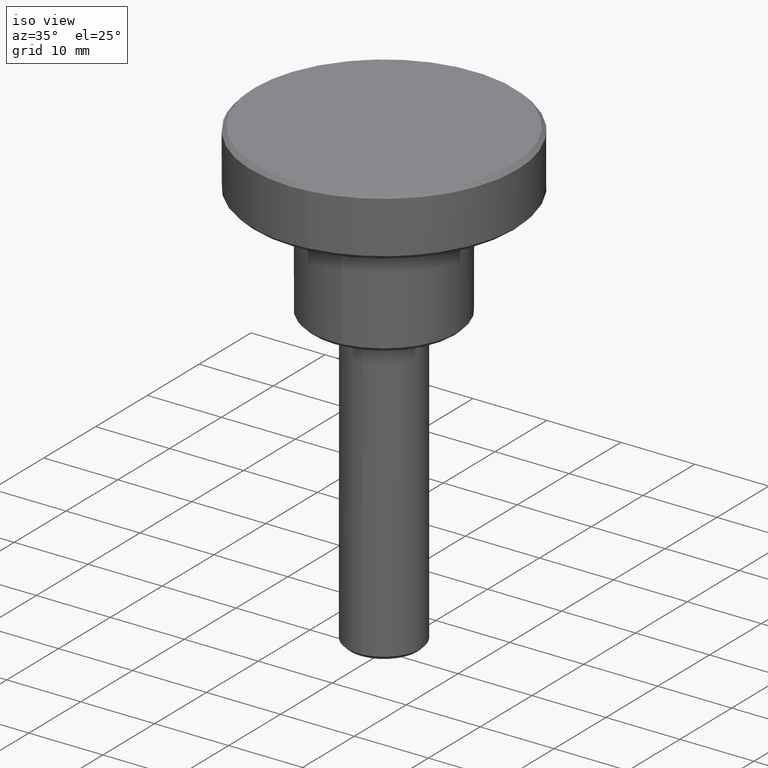
[diagram: clean part render]
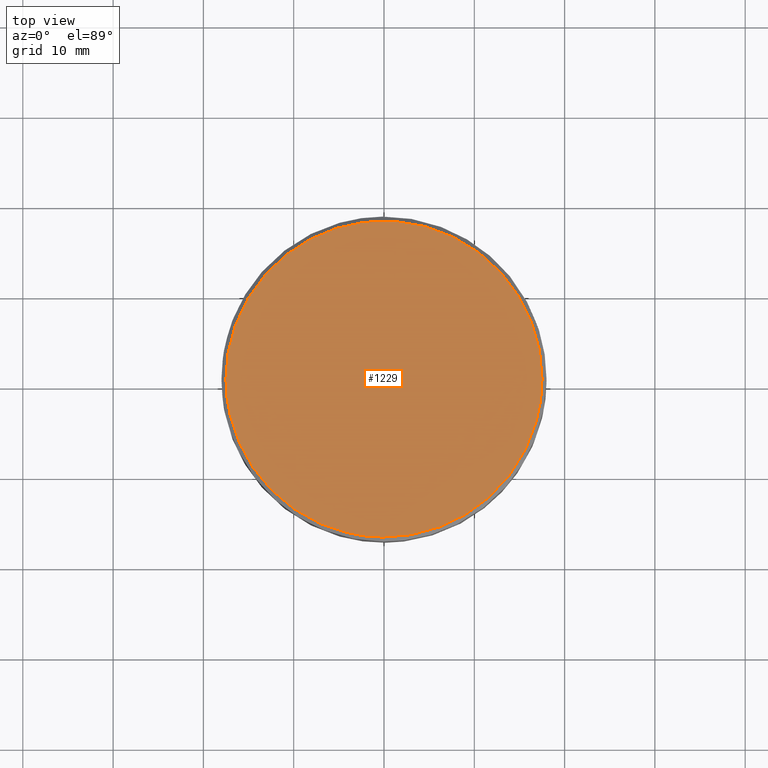
[diagram: tour spotlight — one face highlighted and labeled with its STEP entity id]
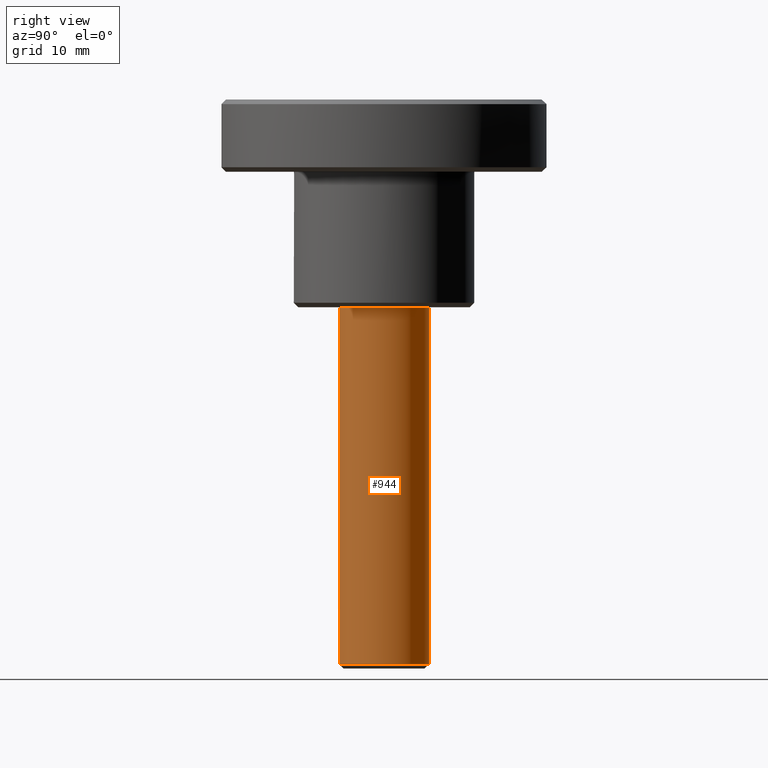
[diagram: tour spotlight — one face highlighted and labeled with its STEP entity id]
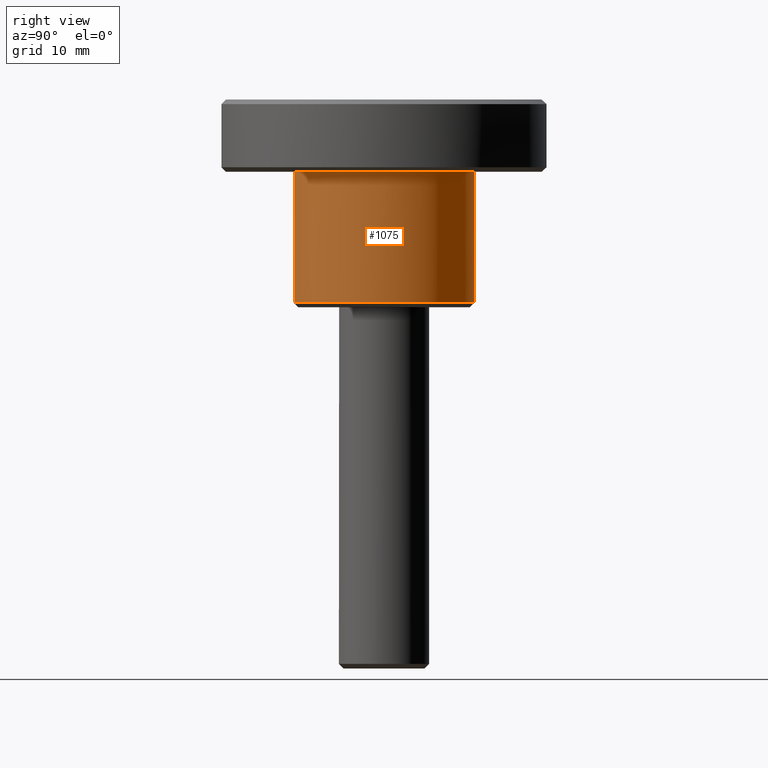
[diagram: tour spotlight — one face highlighted and labeled with its STEP entity id]
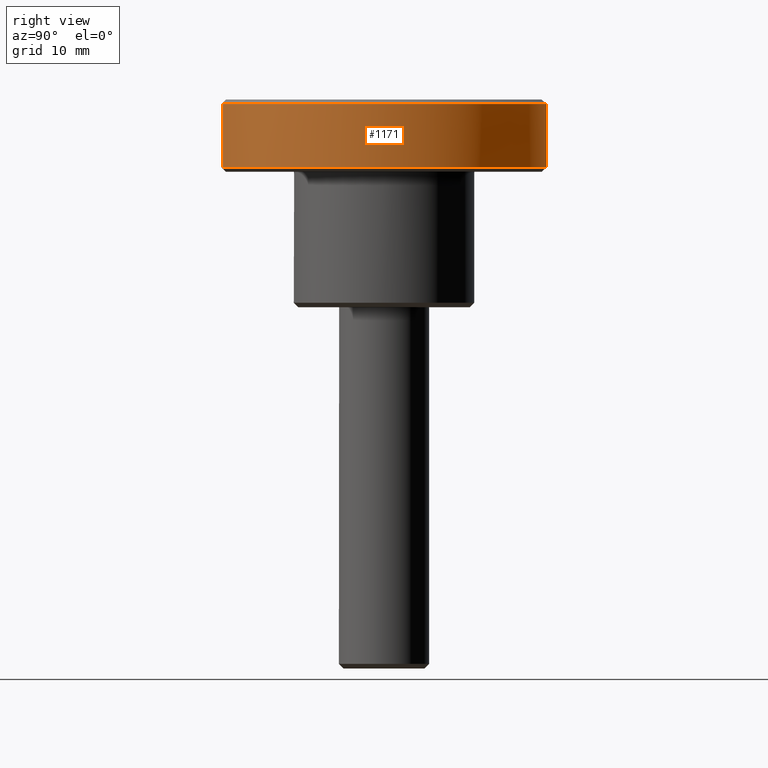
[diagram: tour spotlight — one face highlighted and labeled with its STEP entity id]
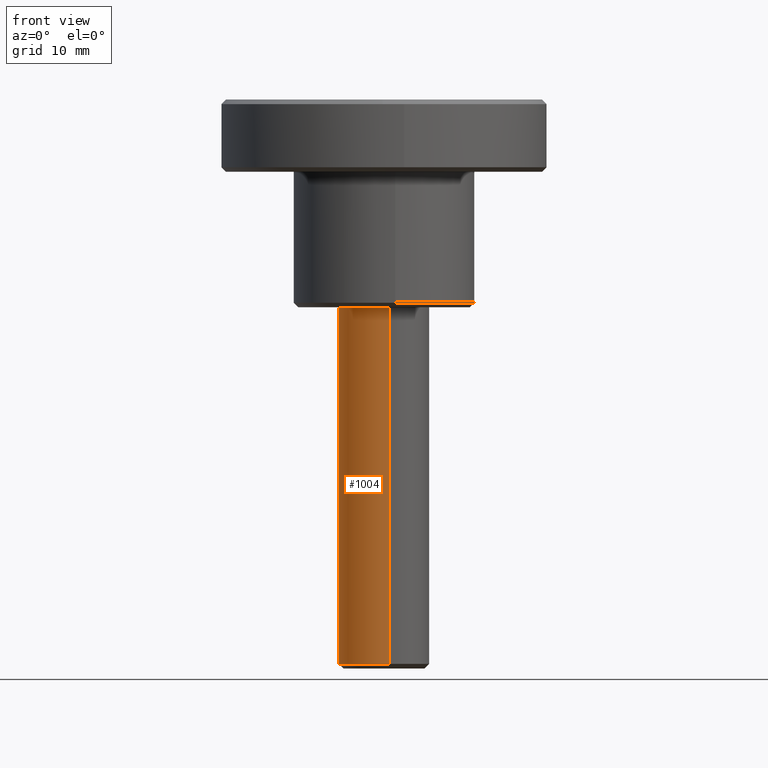
[diagram: tour spotlight — one face highlighted and labeled with its STEP entity id]
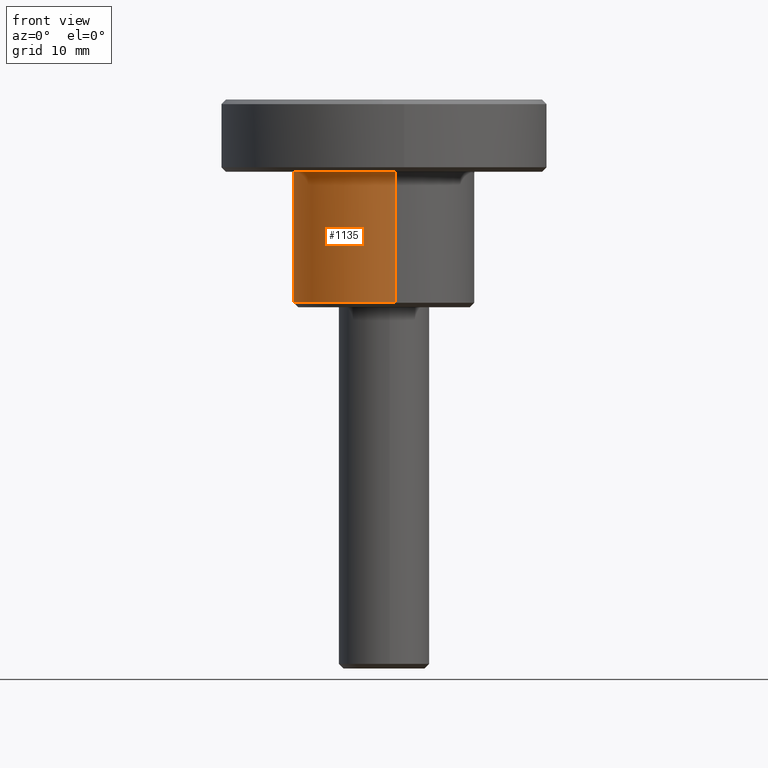
[diagram: tour spotlight — one face highlighted and labeled with its STEP entity id]
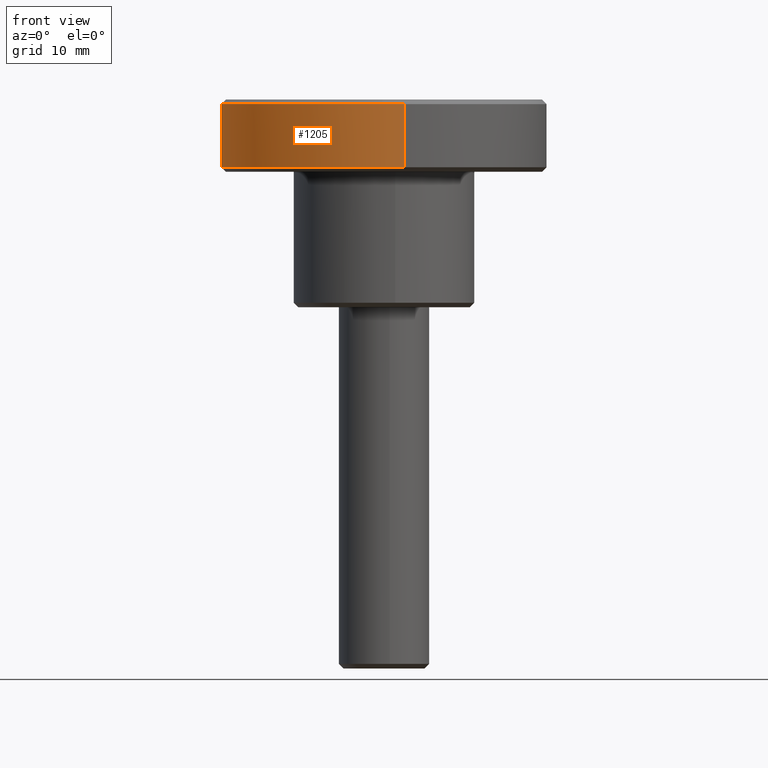
[diagram: tour spotlight — one face highlighted and labeled with its STEP entity id]
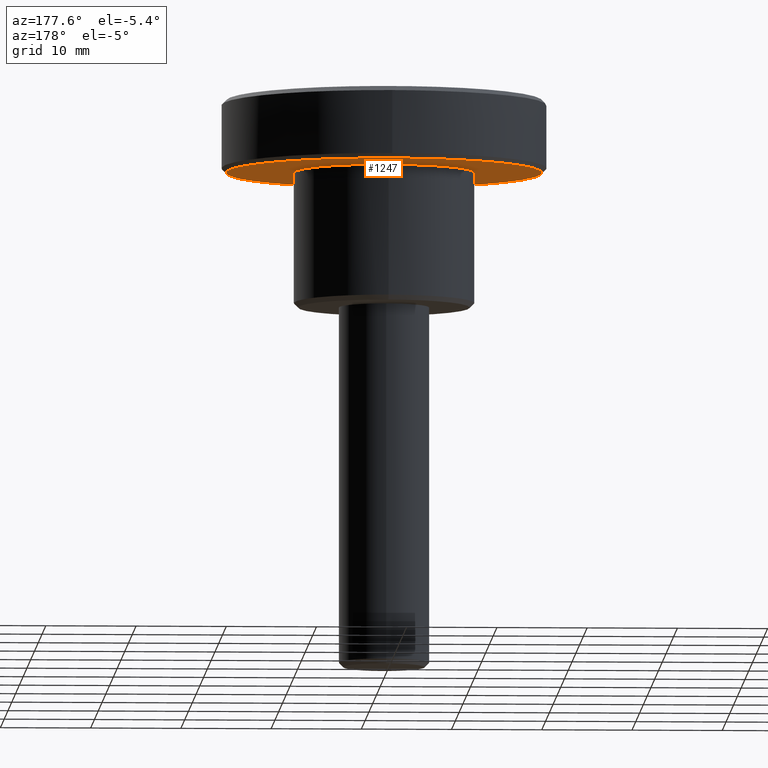
[diagram: tour spotlight — one face highlighted and labeled with its STEP entity id]
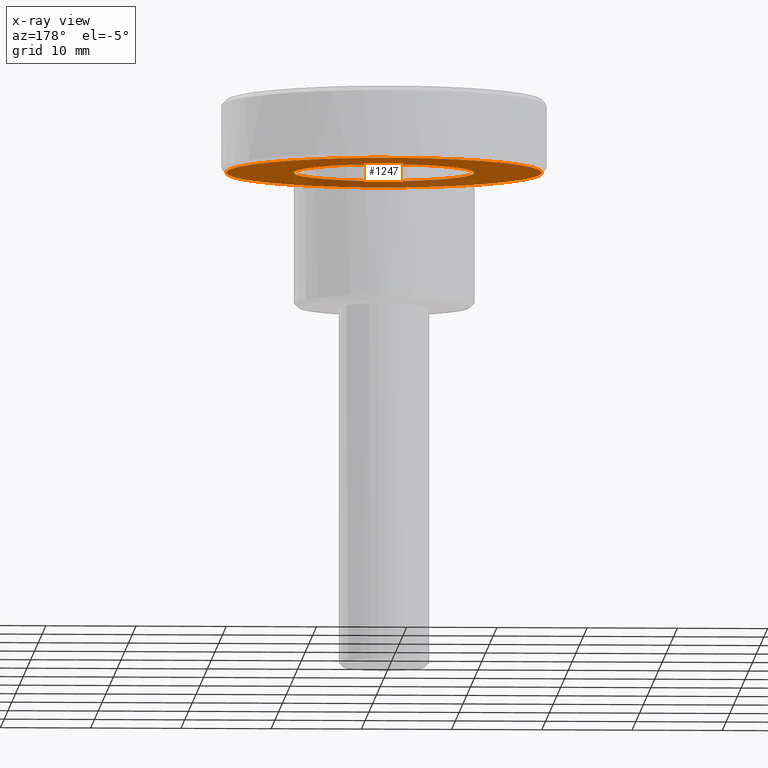
[diagram: x-ray of the same camera — body ghosted, this tour face saturated]
A machine part: a face-by-face anatomy tour. The part has 18 B-rep faces; the first image is the clean iso view, then the 8 largest visible faces are spotlighted one at a time (largest first), each with its STEP entity span.

Face 1 — top view, entity #1229. In plain terms, the highlighted face is a freeform B-spline surface patch.
Definition (entity closure, byte-faithful):
#288=CARTESIAN_POINT('',(-17.048817680625131,-3.948140789385914,22.999999999999769));
#289=VERTEX_POINT('',#288);
#295=CARTESIAN_POINT('',(-17.500000000000000,0.0,23.0));
#296=VERTEX_POINT('',#295);
#297=CARTESIAN_POINT('',(-17.500000000000000,0.0,23.0));
#298=CARTESIAN_POINT('',(-17.500000000000000,-1.999850311897530,23.0));
#299=CARTESIAN_POINT('',(-17.048817680625131,-3.948140789385913,22.999999999999780));
#307=(BOUNDED_CURVE()B_SPLINE_CURVE(2,(#297,#298,#299),.UNSPECIFIED.,.F.,.U.)B_SPLINE_CURVE_WITH_KNOTS((3,3),(0.500000000000000,0.538577028215430),.UNSPECIFIED.)CURVE()GEOMETRIC_REPRESENTATION_ITEM()RATIONAL_B_SPLINE_CURVE((1.0,0.954804200134902,0.923556557442722))REPRESENTATION_ITEM(''));
#308=EDGE_CURVE('',#296,#289,#307,.T.);
#310=CARTESIAN_POINT('',(17.500000000000000,0.0,23.0));
#311=VERTEX_POINT('',#310);
#312=CARTESIAN_POINT('',(17.500000000000000,0.0,23.0));
#313=CARTESIAN_POINT('',(17.499999999999996,17.499999999999996,22.999999999999993));
#314=CARTESIAN_POINT('',(0.0,17.500000000000000,23.0));
#315=CARTESIAN_POINT('',(-17.499999999999996,17.499999999999996,22.999999999999993));
#316=CARTESIAN_POINT('',(-17.500000000000000,0.0,23.0));
#324=(BOUNDED_CURVE()B_SPLINE_CURVE(2,(#312,#313,#314,#315,#316),.UNSPECIFIED.,.F.,.U.)B_SPLINE_CURVE_WITH_KNOTS((3,2,3),(0.0,0.250000000000000,0.500000000000000),.UNSPECIFIED.)CURVE()GEOMETRIC_REPRESENTATION_ITEM()RATIONAL_B_SPLINE_CURVE((1.0,0.707106781186548,1.0,0.707106781186548,1.0))REPRESENTATION_ITEM(''));
#325=EDGE_CURVE('',#311,#296,#324,.T.);
#327=CARTESIAN_POINT('',(-0.152714371282346,-17.499333653630739,22.999999999991751));
#328=VERTEX_POINT('',#327);
#329=CARTESIAN_POINT('',(-0.152714371282346,-17.499333653630735,22.999999999991754));
#330=CARTESIAN_POINT('',(-0.076358639423012,-17.499999999999993,23.000000000000004));
#331=CARTESIAN_POINT('',(0.0,-17.500000000000000,23.0));
#332=CARTESIAN_POINT('',(17.499999999999996,-17.499999999999996,22.999999999999993));
#333=CARTESIAN_POINT('',(17.500000000000000,0.0,23.0));
#341=(BOUNDED_CURVE()B_SPLINE_CURVE(2,(#329,#330,#331,#332,#333),.UNSPECIFIED.,.F.,.U.)B_SPLINE_CURVE_WITH_KNOTS((3,2,3),(0.748460105663790,0.750000000000000,1.0),.UNSPECIFIED.)CURVE()GEOMETRIC_REPRESENTATION_ITEM()RATIONAL_B_SPLINE_CURVE((0.996414028097576,0.998195901564940,1.0,0.707106781186548,1.0))REPRESENTATION_ITEM(''));
#342=EDGE_CURVE('',#328,#311,#341,.T.);
#444=CARTESIAN_POINT('',(-17.048817680625131,-3.948140789385914,22.999999999999776));
#445=CARTESIAN_POINT('',(-13.938512323490519,-17.379026817407762,23.0));
#446=CARTESIAN_POINT('',(-0.152714371282346,-17.499333653630735,22.999999999991754));
#454=(BOUNDED_CURVE()B_SPLINE_CURVE(2,(#444,#445,#446),.UNSPECIFIED.,.F.,.U.)B_SPLINE_CURVE_WITH_KNOTS((3,3),(0.538577028215430,0.748460105663791),.UNSPECIFIED.)CURVE()GEOMETRIC_REPRESENTATION_ITEM()RATIONAL_B_SPLINE_CURVE((0.923556557442722,0.753549905436844,0.996414028097577))REPRESENTATION_ITEM(''));
#455=EDGE_CURVE('',#289,#328,#454,.T.);
#1218=CARTESIAN_POINT('',(-19.248249932163208,-19.247551095767289,23.0));
#1219=CARTESIAN_POINT('',(19.248250870936360,-19.247551095767289,23.0));
#1220=CARTESIAN_POINT('',(-19.248249932163208,19.248217624707490,23.0));
#1221=CARTESIAN_POINT('',(19.248250870936360,19.248217624707490,23.0));
#1222=B_SPLINE_SURFACE_WITH_KNOTS('',1,1,((#1218,#1220),(#1219,#1221)),.UNSPECIFIED.,.F.,.F.,.U.,(2,2),(2,2),(0.0,38.496500803099579),(0.0,38.495768720474793),.UNSPECIFIED.);
#1223=ORIENTED_EDGE('',*,*,#325,.T.);
#1224=ORIENTED_EDGE('',*,*,#308,.T.);
#1225=ORIENTED_EDGE('',*,*,#455,.T.);
#1226=ORIENTED_EDGE('',*,*,#342,.T.);
#1227=EDGE_LOOP('',(#1223,#1224,#1225,#1226));
#1228=FACE_OUTER_BOUND('',#1227,.T.);
#1229=ADVANCED_FACE('',(#1228),#1222,.T.);

Face 2 — right view, entity #944. In plain terms, the highlighted face is a freeform B-spline surface patch.
Definition (entity closure, byte-faithful):
#68=CARTESIAN_POINT('',(0.620640010463084,-4.961331069119694,-39.500000000000000));
#69=VERTEX_POINT('',#68);
#126=CARTESIAN_POINT('',(-0.043632677529756,4.999809615320469,-39.500000000000028));
#127=VERTEX_POINT('',#126);
#133=CARTESIAN_POINT('',(5.0,0.0,-39.500000000000000));
#134=VERTEX_POINT('',#133);
#135=CARTESIAN_POINT('',(5.0,0.0,-39.500000000000000));
#136=CARTESIAN_POINT('',(5.000000000000001,5.000000000000001,-39.500000000000000));
#137=CARTESIAN_POINT('',(0.0,5.0,-39.500000000000000));
#138=CARTESIAN_POINT('',(-0.021816754179296,5.000000000000001,-39.500000000000000));
#139=CARTESIAN_POINT('',(-0.043632677529756,4.999809615320469,-39.500000000000028));
#147=(BOUNDED_CURVE()B_SPLINE_CURVE(2,(#135,#136,#137,#138,#139),.UNSPECIFIED.,.F.,.U.)B_SPLINE_CURVE_WITH_KNOTS((3,2,3),(0.500000000000000,0.750000000000000,0.751539894340327),.UNSPECIFIED.)CURVE()GEOMETRIC_REPRESENTATION_ITEM()RATIONAL_B_SPLINE_CURVE((1.0,0.707106781186548,1.0,0.998195901560116,0.996414028088048))REPRESENTATION_ITEM(''));
#148=EDGE_CURVE('',#134,#127,#147,.T.);
#150=CARTESIAN_POINT('',(0.620640010463084,-4.961331069119694,-39.500000000000007));
#151=CARTESIAN_POINT('',(5.000000000000001,-4.413493000636504,-39.500000000000000));
#152=CARTESIAN_POINT('',(5.0,0.0,-39.500000000000000));
#160=(BOUNDED_CURVE()B_SPLINE_CURVE(2,(#150,#151,#152),.UNSPECIFIED.,.F.,.U.)B_SPLINE_CURVE_WITH_KNOTS((3,3),(0.271473928975048,0.500000000000000),.UNSPECIFIED.)CURVE()GEOMETRIC_REPRESENTATION_ITEM()RATIONAL_B_SPLINE_CURVE((0.954005430266283,0.732265053898841,1.0))REPRESENTATION_ITEM(''));
#161=EDGE_CURVE('',#69,#134,#160,.T.);
#878=CARTESIAN_POINT('',(0.620640010399146,-4.961331069127693,-40.487500000000018));
#879=CARTESIAN_POINT('',(5.038664152512223,-4.408656290666105,-40.487500000000011));
#880=CARTESIAN_POINT('',(4.999809615320855,0.043632677491869,-40.487500000000011));
#881=CARTESIAN_POINT('',(4.956176937828985,5.043442292812725,-40.487500000000011));
#882=CARTESIAN_POINT('',(-0.043632677491869,4.999809615320855,-40.487500000000011));
#883=CARTESIAN_POINT('',(0.620640010399146,-4.961331069127693,1.012187500000003));
#884=CARTESIAN_POINT('',(5.038664152512223,-4.408656290666105,1.012187500000003));
#885=CARTESIAN_POINT('',(4.999809615320855,0.043632677491869,1.012187500000003));
#886=CARTESIAN_POINT('',(4.956176937828985,5.043442292812725,1.012187500000003));
#887=CARTESIAN_POINT('',(-0.043632677491869,4.999809615320855,1.012187500000003));
#895=(BOUNDED_SURFACE()B_SPLINE_SURFACE(2,1,((#878,#883),(#879,#884),(#880,#885),(#881,#886),(#882,#887)),.UNSPECIFIED.,.F.,.F.,.U.)B_SPLINE_SURFACE_WITH_KNOTS((3,2,3),(2,2),(0.0,7.621529547664946,15.905800795126851),(0.0,41.499687500000022),.UNSPECIFIED.)GEOMETRIC_REPRESENTATION_ITEM()RATIONAL_B_SPLINE_SURFACE(((0.956886118190660,0.956886118190660),(0.730538238691624,0.730538238691624),(1.0,1.0),(0.707106781186548,0.707106781186548),(1.0,1.0)))REPRESENTATION_ITEM('')SURFACE());
#896=ORIENTED_EDGE('',*,*,#161,.T.);
#897=ORIENTED_EDGE('',*,*,#148,.T.);
#898=CARTESIAN_POINT('',(-0.043632677557229,4.999809615320285,9.436896E-016));
#899=VERTEX_POINT('',#898);
#900=CARTESIAN_POINT('',(-0.043632677529756,4.999809615320469,-39.500000000000028));
#901=CARTESIAN_POINT('',(-0.043632677557229,4.999809615320285,9.436896E-016));
#902=QUASI_UNIFORM_CURVE('',1,(#900,#901),.UNSPECIFIED.,.F.,.U.);
#903=EDGE_CURVE('',#127,#899,#902,.T.);
#904=ORIENTED_EDGE('',*,*,#903,.T.);
#905=CARTESIAN_POINT('',(5.0,0.0,0.0));
#906=VERTEX_POINT('',#905);
#907=CARTESIAN_POINT('',(-0.043632677557229,4.999809615320285,9.436896E-016));
#908=CARTESIAN_POINT('',(-0.021816754168871,5.0,0.0));
#909=CARTESIAN_POINT('',(0.0,5.0,0.0));
#910=CARTESIAN_POINT('',(5.000000000000001,5.000000000000001,0.0));
#911=CARTESIAN_POINT('',(5.0,0.0,0.0));
#919=(BOUNDED_CURVE()B_SPLINE_CURVE(2,(#907,#908,#909,#910,#911),.UNSPECIFIED.,.F.,.U.)B_SPLINE_CURVE_WITH_KNOTS((3,2,3),(0.248460105660408,0.250000000000000,0.500000000000000),.UNSPECIFIED.)CURVE()GEOMETRIC_REPRESENTATION_ITEM()RATIONAL_B_SPLINE_CURVE((0.996414028089748,0.998195901560977,1.0,0.707106781186548,1.0))REPRESENTATION_ITEM(''));
#920=EDGE_CURVE('',#899,#906,#919,.T.);
#921=ORIENTED_EDGE('',*,*,#920,.T.);
#922=CARTESIAN_POINT('',(0.620640010418619,-4.961331069125258,9.281966E-016));
#923=VERTEX_POINT('',#922);
#924=CARTESIAN_POINT('',(5.0,0.0,0.0));
#925=CARTESIAN_POINT('',(5.000000000000002,-4.413493000716219,0.0));
#926=CARTESIAN_POINT('',(0.620640010418619,-4.961331069125258,9.281966E-016));
#934=(BOUNDED_CURVE()B_SPLINE_CURVE(2,(#924,#925,#926),.UNSPECIFIED.,.F.,.U.)B_SPLINE_CURVE_WITH_KNOTS((3,3),(0.500000000000000,0.728526071027975),.UNSPECIFIED.)CURVE()GEOMETRIC_REPRESENTATION_ITEM()RATIONAL_B_SPLINE_CURVE((1.0,0.732265053895299,0.954005430272149))REPRESENTATION_ITEM(''));
#935=EDGE_CURVE('',#906,#923,#934,.T.);
#936=ORIENTED_EDGE('',*,*,#935,.T.);
#937=CARTESIAN_POINT('',(0.620640010463084,-4.961331069119694,-39.500000000000000));
#938=CARTESIAN_POINT('',(0.620640010418619,-4.961331069125258,9.281966E-016));
#939=QUASI_UNIFORM_CURVE('',1,(#937,#938),.UNSPECIFIED.,.F.,.U.);
#940=EDGE_CURVE('',#69,#923,#939,.T.);
#941=ORIENTED_EDGE('',*,*,#940,.F.);
#942=EDGE_LOOP('',(#896,#897,#904,#921,#936,#941));
#943=FACE_OUTER_BOUND('',#942,.T.);
#944=ADVANCED_FACE('',(#943),#895,.T.);

Face 3 — right view, entity #1075. In plain terms, the highlighted face is a freeform B-spline surface patch.
Definition (entity closure, byte-faithful):
#701=CARTESIAN_POINT('',(1.241261573678535,-9.922664445871554,0.499999999999924));
#702=VERTEX_POINT('',#701);
#759=CARTESIAN_POINT('',(-0.087264279312552,9.999619240028604,0.499999999999829));
#760=VERTEX_POINT('',#759);
#766=CARTESIAN_POINT('',(10.0,0.0,0.499999999999945));
#767=VERTEX_POINT('',#766);
#768=CARTESIAN_POINT('',(10.0,0.0,0.499999999999945));
#769=CARTESIAN_POINT('',(10.000000000000002,10.000000000000002,0.499999999999945));
#770=CARTESIAN_POINT('',(0.0,10.0,0.499999999999945));
#771=CARTESIAN_POINT('',(-0.043632970340702,10.0,0.499999999999945));
#772=CARTESIAN_POINT('',(-0.087264279312552,9.999619240028604,0.499999999999829));
#780=(BOUNDED_CURVE()B_SPLINE_CURVE(2,(#768,#769,#770,#771,#772),.UNSPECIFIED.,.F.,.U.)B_SPLINE_CURVE_WITH_KNOTS((3,2,3),(0.500000000000000,0.750000000000000,0.751539875387094),.UNSPECIFIED.)CURVE()GEOMETRIC_REPRESENTATION_ITEM()RATIONAL_B_SPLINE_CURVE((1.0,0.707106781186548,1.0,0.998195923765210,0.996414071951143))REPRESENTATION_ITEM(''));
#781=EDGE_CURVE('',#767,#760,#780,.T.);
#783=CARTESIAN_POINT('',(1.241261573678535,-9.922664445871554,0.499999999999924));
#784=CARTESIAN_POINT('',(10.000000000000002,-8.827002539573293,0.499999999999945));
#785=CARTESIAN_POINT('',(10.0,0.0,0.499999999999945));
#793=(BOUNDED_CURVE()B_SPLINE_CURVE(2,(#783,#784,#785),.UNSPECIFIED.,.F.,.U.)B_SPLINE_CURVE_WITH_KNOTS((3,3),(0.271473615442755,0.500000000000000),.UNSPECIFIED.)CURVE()GEOMETRIC_REPRESENTATION_ITEM()RATIONAL_B_SPLINE_CURVE((0.954006038712170,0.732264686572910,1.0))REPRESENTATION_ITEM(''));
#794=EDGE_CURVE('',#702,#767,#793,.T.);
#1005=CARTESIAN_POINT('',(1.101168965067724,-9.940189395734080,0.137499999999943));
#1006=CARTESIAN_POINT('',(1.171051977331919,-9.931447347913837,0.137499999999943));
#1007=CARTESIAN_POINT('',(10.077328305024446,-8.817312581332210,0.137499999999943));
#1008=CARTESIAN_POINT('',(9.999619230641709,0.087265354983739,0.137499999999943));
#1009=CARTESIAN_POINT('',(9.912353875657971,10.086884585625448,0.137499999999943));
#1010=CARTESIAN_POINT('',(-0.154954740714169,9.999028514321607,0.137499999999943));
#1011=CARTESIAN_POINT('',(-0.222265600212335,9.998441101349876,0.137499999999943));
#1012=CARTESIAN_POINT('',(1.101168965067724,-9.940189395734080,15.371562500000000));
#1013=CARTESIAN_POINT('',(1.171051977331919,-9.931447347913837,15.371562500000001));
#1014=CARTESIAN_POINT('',(10.077328305024446,-8.817312581332210,15.371562500000008));
#1015=CARTESIAN_POINT('',(9.999619230641709,0.087265354983739,15.371562500000000));
#1016=CARTESIAN_POINT('',(9.912353875657971,10.086884585625448,15.371562500000001));
#1017=CARTESIAN_POINT('',(-0.154954740714169,9.999028514321607,15.371562500000008));
#1018=CARTESIAN_POINT('',(-0.222265600212335,9.998441101349876,15.371562500000000));
#1026=(BOUNDED_SURFACE()B_SPLINE_SURFACE(2,1,((#1005,#1012),(#1006,#1013),(#1007,#1014),(#1008,#1015),(#1009,#1016),(#1010,#1017),(#1011,#1018)),.UNSPECIFIED.,.F.,.F.,.U.)B_SPLINE_SURFACE_WITH_KNOTS((3,1,2,1,3),(2,2),(0.0,0.159078950191660,15.402138045521550,31.970680540445350,32.129738658369469),(0.0,15.234062500000061),.UNSPECIFIED.)GEOMETRIC_REPRESENTATION_ITEM()RATIONAL_B_SPLINE_SURFACE(((0.961610521976491,0.961610521976491),(0.959248320083576,0.959248320083576),(0.730538238691624,0.730538238691624),(1.0,1.0),(0.707106781186548,0.707106781186548),(1.002811776844673,1.002811776844673),(1.005623553689346,1.005623553689346)))REPRESENTATION_ITEM('')SURFACE());
#1027=ORIENTED_EDGE('',*,*,#794,.T.);
#1028=ORIENTED_EDGE('',*,*,#781,.T.);
#1029=CARTESIAN_POINT('',(-0.087265362899344,9.999619230572632,15.0));
#1030=VERTEX_POINT('',#1029);
#1031=CARTESIAN_POINT('',(-0.087264279312552,9.999619240028604,0.499999999999829));
#1032=CARTESIAN_POINT('',(-0.087265362899344,9.999619230572632,15.0));
#1033=QUASI_UNIFORM_CURVE('',1,(#1031,#1032),.UNSPECIFIED.,.F.,.U.);
#1034=EDGE_CURVE('',#760,#1030,#1033,.T.);
#1035=ORIENTED_EDGE('',*,*,#1034,.T.);
#1036=CARTESIAN_POINT('',(10.0,0.0,15.0));
#1037=VERTEX_POINT('',#1036);
#1038=CARTESIAN_POINT('',(-0.087265362899344,9.999619230572632,15.000000000000002));
#1039=CARTESIAN_POINT('',(-0.043633516123073,10.0,14.999999999999995));
#1040=CARTESIAN_POINT('',(0.0,10.0,15.0));
#1041=CARTESIAN_POINT('',(10.000000000000002,10.000000000000002,14.999999999999995));
#1042=CARTESIAN_POINT('',(10.0,0.0,15.0));
#1050=(BOUNDED_CURVE()B_SPLINE_CURVE(2,(#1038,#1039,#1040,#1041,#1042),.UNSPECIFIED.,.F.,.U.)B_SPLINE_CURVE_WITH_KNOTS((3,2,3),(0.248460105386147,0.250000000000000,0.500000000000000),.UNSPECIFIED.)CURVE()GEOMETRIC_REPRESENTATION_ITEM()RATIONAL_B_SPLINE_CURVE((0.996414027455032,0.998195901239660,1.0,0.707106781186548,1.0))REPRESENTATION_ITEM(''));
#1051=EDGE_CURVE('',#1030,#1037,#1050,.T.);
#1052=ORIENTED_EDGE('',*,*,#1051,.T.);
#1053=CARTESIAN_POINT('',(1.241271613211208,-9.922663189999156,15.0));
#1054=VERTEX_POINT('',#1053);
#1055=CARTESIAN_POINT('',(10.0,0.0,15.0));
#1056=CARTESIAN_POINT('',(10.0,-8.826993539005677,15.000000000000007));
#1057=CARTESIAN_POINT('',(1.241271613211209,-9.922663189999156,14.999999999999996));
#1065=(BOUNDED_CURVE()B_SPLINE_CURVE(2,(#1055,#1056,#1057),.UNSPECIFIED.,.F.,.U.)B_SPLINE_CURVE_WITH_KNOTS((3,3),(0.500000000000000,0.728526213924961),.UNSPECIFIED.)CURVE()GEOMETRIC_REPRESENTATION_ITEM()RATIONAL_B_SPLINE_CURVE((1.0,0.732264886481066,0.954005707580145))REPRESENTATION_ITEM(''));
#1066=EDGE_CURVE('',#1037,#1054,#1065,.T.);
#1067=ORIENTED_EDGE('',*,*,#1066,.T.);
#1068=CARTESIAN_POINT('',(1.241261573678535,-9.922664445871554,0.499999999999924));
#1069=CARTESIAN_POINT('',(1.241271613211208,-9.922663189999156,15.0));
#1070=QUASI_UNIFORM_CURVE('',1,(#1068,#1069),.UNSPECIFIED.,.F.,.U.);
#1071=EDGE_CURVE('',#702,#1054,#1070,.T.);
#1072=ORIENTED_EDGE('',*,*,#1071,.F.);
#1073=EDGE_LOOP('',(#1027,#1028,#1035,#1052,#1067,#1072));
#1074=FACE_OUTER_BOUND('',#1073,.T.);
#1075=ADVANCED_FACE('',(#1074),#1026,.T.);

Face 4 — right view, entity #1171. In plain terms, the highlighted face is a freeform B-spline surface patch.
Definition (entity closure, byte-faithful):
#351=CARTESIAN_POINT('',(2.234285799115181,-17.860794130372089,22.499999999999989));
#352=VERTEX_POINT('',#351);
#368=CARTESIAN_POINT('',(18.0,0.0,22.500000000000000));
#369=VERTEX_POINT('',#368);
#370=CARTESIAN_POINT('',(18.0,0.0,22.500000000000000));
#371=CARTESIAN_POINT('',(18.000000000000004,-15.888591153580794,22.500000000000000));
#372=CARTESIAN_POINT('',(2.234285799115181,-17.860794130372092,22.499999999999982));
#380=(BOUNDED_CURVE()B_SPLINE_CURVE(2,(#370,#371,#372),.UNSPECIFIED.,.F.,.U.)B_SPLINE_CURVE_WITH_KNOTS((3,3),(0.500000000000000,0.728526243239963),.UNSPECIFIED.)CURVE()GEOMETRIC_REPRESENTATION_ITEM()RATIONAL_B_SPLINE_CURVE((1.0,0.732264852136405,0.954005764469317))REPRESENTATION_ITEM(''));
#381=EDGE_CURVE('',#369,#352,#380,.T.);
#383=CARTESIAN_POINT('',(-0.157059840432598,17.999314770462970,22.499999999999879));
#384=VERTEX_POINT('',#383);
#385=CARTESIAN_POINT('',(-0.157059840432598,17.999314770462966,22.499999999999879));
#386=CARTESIAN_POINT('',(-0.078531414995351,18.0,22.500000000000000));
#387=CARTESIAN_POINT('',(0.0,18.0,22.500000000000000));
#388=CARTESIAN_POINT('',(18.000000000000007,18.000000000000007,22.500000000000004));
#389=CARTESIAN_POINT('',(18.0,0.0,22.500000000000000));
#397=(BOUNDED_CURVE()B_SPLINE_CURVE(2,(#385,#386,#387,#388,#389),.UNSPECIFIED.,.F.,.U.)B_SPLINE_CURVE_WITH_KNOTS((3,2,3),(0.248460279843010,0.250000000000000,0.500000000000000),.UNSPECIFIED.)CURVE()GEOMETRIC_REPRESENTATION_ITEM()RATIONAL_B_SPLINE_CURVE((0.996414431197377,0.998196105628589,1.0,0.707106781186547,1.0))REPRESENTATION_ITEM(''));
#398=EDGE_CURVE('',#384,#369,#397,.T.);
#562=CARTESIAN_POINT('',(-0.157060157866993,17.999314767693381,15.500000000000000));
#563=VERTEX_POINT('',#562);
#577=CARTESIAN_POINT('',(18.0,0.0,15.500000000000000));
#578=VERTEX_POINT('',#577);
#579=CARTESIAN_POINT('',(18.0,0.0,15.500000000000000));
#580=CARTESIAN_POINT('',(18.000000000000007,18.000000000000007,15.500000000000005));
#581=CARTESIAN_POINT('',(0.0,18.0,15.500000000000000));
#582=CARTESIAN_POINT('',(-0.078531573721610,18.000000000000004,15.500000000000004));
#583=CARTESIAN_POINT('',(-0.157060157866993,17.999314767693381,15.500000000000004));
#591=(BOUNDED_CURVE()B_SPLINE_CURVE(2,(#579,#580,#581,#582,#583),.UNSPECIFIED.,.F.,.U.)B_SPLINE_CURVE_WITH_KNOTS((3,2,3),(0.500000000000000,0.750000000000000,0.751539723263430),.UNSPECIFIED.)CURVE()GEOMETRIC_REPRESENTATION_ITEM()RATIONAL_B_SPLINE_CURVE((1.0,0.707106781186547,1.0,0.998196101989168,0.996414424008193))REPRESENTATION_ITEM(''));
#592=EDGE_CURVE('',#578,#563,#591,.T.);
#594=CARTESIAN_POINT('',(14.739590028784630,-10.331722304794230,15.500000000000799));
#595=VERTEX_POINT('',#594);
#596=CARTESIAN_POINT('',(14.739590028784635,-10.331722304794228,15.500000000000808));
#597=CARTESIAN_POINT('',(18.000000000000007,-5.680309415088353,15.499999999999996));
#598=CARTESIAN_POINT('',(18.0,0.0,15.500000000000000));
#606=(BOUNDED_CURVE()B_SPLINE_CURVE(2,(#596,#597,#598),.UNSPECIFIED.,.F.,.U.)B_SPLINE_CURVE_WITH_KNOTS((3,3),(0.401326273796802,0.500000000000000),.UNSPECIFIED.)CURVE()GEOMETRIC_REPRESENTATION_ITEM()RATIONAL_B_SPLINE_CURVE((0.860049271925711,0.884396538880112,1.0))REPRESENTATION_ITEM(''));
#607=EDGE_CURVE('',#595,#578,#606,.T.);
#645=CARTESIAN_POINT('',(2.234295824811438,-17.860792876218060,15.500000000000000));
#646=VERTEX_POINT('',#645);
#647=CARTESIAN_POINT('',(2.234295824811438,-17.860792876218056,15.499999999999996));
#648=CARTESIAN_POINT('',(10.156769864426224,-16.869731012865756,15.500000000000000));
#649=CARTESIAN_POINT('',(14.739590028784635,-10.331722304794228,15.500000000000808));
#657=(BOUNDED_CURVE()B_SPLINE_CURVE(2,(#647,#648,#649),.UNSPECIFIED.,.F.,.U.)B_SPLINE_CURVE_WITH_KNOTS((3,3),(0.271473851425098,0.401326273796802),.UNSPECIFIED.)CURVE()GEOMETRIC_REPRESENTATION_ITEM()RATIONAL_B_SPLINE_CURVE((0.954005580760810,0.828008811776786,0.860049271925711))REPRESENTATION_ITEM(''));
#658=EDGE_CURVE('',#646,#595,#657,.T.);
#1136=CARTESIAN_POINT('',(2.234304037436927,-17.860791848859694,15.324999999999998));
#1137=CARTESIAN_POINT('',(18.139190949044000,-15.871162646397979,15.324999999999994));
#1138=CARTESIAN_POINT('',(17.999314615155079,0.157077638970730,15.324999999999999));
#1139=CARTESIAN_POINT('',(17.842236976184342,18.156392254125802,15.324999999999998));
#1140=CARTESIAN_POINT('',(-0.157077638970730,17.999314615155079,15.324999999999999));
#1141=CARTESIAN_POINT('',(2.234304037436927,-17.860791848859694,22.679375000000004));
#1142=CARTESIAN_POINT('',(18.139190949044000,-15.871162646397979,22.679375000000007));
#1143=CARTESIAN_POINT('',(17.999314615155079,0.157077638970730,22.679375000000000));
#1144=CARTESIAN_POINT('',(17.842236976184342,18.156392254125802,22.679375000000000));
#1145=CARTESIAN_POINT('',(-0.157077638970730,17.999314615155079,22.679375000000000));
#1153=(BOUNDED_SURFACE()B_SPLINE_SURFACE(2,1,((#1136,#1141),(#1137,#1142),(#1138,#1143),(#1139,#1144),(#1140,#1145)),.UNSPECIFIED.,.F.,.F.,.U.)B_SPLINE_SURFACE_WITH_KNOTS((3,2,3),(2,2),(0.0,27.437506371593798,57.260882862456640),(0.0,7.354375000000009),.UNSPECIFIED.)GEOMETRIC_REPRESENTATION_ITEM()RATIONAL_B_SPLINE_SURFACE(((0.956886118190660,0.956886118190660),(0.730538238691624,0.730538238691624),(1.0,1.0),(0.707106781186548,0.707106781186548),(1.0,1.0)))REPRESENTATION_ITEM('')SURFACE());
#1154=ORIENTED_EDGE('',*,*,#381,.T.);
#1155=CARTESIAN_POINT('',(2.234295824811438,-17.860792876218060,15.500000000000000));
#1156=CARTESIAN_POINT('',(2.234285799115181,-17.860794130372089,22.499999999999989));
#1157=QUASI_UNIFORM_CURVE('',1,(#1155,#1156),.UNSPECIFIED.,.F.,.U.);
#1158=EDGE_CURVE('',#646,#352,#1157,.T.);
#1159=ORIENTED_EDGE('',*,*,#1158,.F.);
#1160=ORIENTED_EDGE('',*,*,#658,.T.);
#1161=ORIENTED_EDGE('',*,*,#607,.T.);
#1162=ORIENTED_EDGE('',*,*,#592,.T.);
#1163=CARTESIAN_POINT('',(-0.157060157866993,17.999314767693381,15.500000000000000));
#1164=CARTESIAN_POINT('',(-0.157059840432598,17.999314770462970,22.499999999999879));
#1165=QUASI_UNIFORM_CURVE('',1,(#1163,#1164),.UNSPECIFIED.,.F.,.U.);
#1166=EDGE_CURVE('',#563,#384,#1165,.T.);
#1167=ORIENTED_EDGE('',*,*,#1166,.T.);
#1168=ORIENTED_EDGE('',*,*,#398,.T.);
#1169=EDGE_LOOP('',(#1154,#1159,#1160,#1161,#1162,#1167,#1168));
#1170=FACE_OUTER_BOUND('',#1169,.T.);
#1171=ADVANCED_FACE('',(#1170),#1153,.T.);

Face 5 — front view, entity #1004. In plain terms, the highlighted face is a freeform B-spline surface patch.
Definition (entity closure, byte-faithful):
#66=CARTESIAN_POINT('',(-2.021077160081529,-4.573319047816698,-39.499999999987338));
#67=VERTEX_POINT('',#66);
#68=CARTESIAN_POINT('',(0.620640010463084,-4.961331069119694,-39.500000000000000));
#69=VERTEX_POINT('',#68);
#70=CARTESIAN_POINT('',(-2.021077160081529,-4.573319047816698,-39.499999999987331));
#71=CARTESIAN_POINT('',(-1.055578086415930,-5.0,-39.500000000000000));
#72=CARTESIAN_POINT('',(0.0,-5.0,-39.500000000000000));
#73=CARTESIAN_POINT('',(0.311524637732157,-5.0,-39.500000000000007));
#74=CARTESIAN_POINT('',(0.620640010463084,-4.961331069119694,-39.500000000000007));
#82=(BOUNDED_CURVE()B_SPLINE_CURVE(2,(#70,#71,#72,#73,#74),.UNSPECIFIED.,.F.,.U.)B_SPLINE_CURVE_WITH_KNOTS((3,2,3),(0.181361578450574,0.250000000000000,0.271473928975048),.UNSPECIFIED.)CURVE()GEOMETRIC_REPRESENTATION_ITEM()RATIONAL_B_SPLINE_CURVE((0.883326595741997,0.919585087112456,1.0,0.974841727287707,0.954005430266283))REPRESENTATION_ITEM(''));
#83=EDGE_CURVE('',#67,#69,#82,.T.);
#126=CARTESIAN_POINT('',(-0.043632677529756,4.999809615320469,-39.500000000000028));
#127=VERTEX_POINT('',#126);
#184=CARTESIAN_POINT('',(-5.0,0.0,-39.500000000000000));
#185=VERTEX_POINT('',#184);
#186=CARTESIAN_POINT('',(-5.0,0.0,-39.500000000000000));
#187=CARTESIAN_POINT('',(-5.0,-3.256850012744719,-39.499999999999993));
#188=CARTESIAN_POINT('',(-2.021077160081529,-4.573319047816698,-39.499999999987331));
#196=(BOUNDED_CURVE()B_SPLINE_CURVE(2,(#186,#187,#188),.UNSPECIFIED.,.F.,.U.)B_SPLINE_CURVE_WITH_KNOTS((3,3),(0.0,0.181361578450574),.UNSPECIFIED.)CURVE()GEOMETRIC_REPRESENTATION_ITEM()RATIONAL_B_SPLINE_CURVE((1.0,0.787521694074091,0.883326595741997))REPRESENTATION_ITEM(''));
#197=EDGE_CURVE('',#185,#67,#196,.T.);
#199=CARTESIAN_POINT('',(-0.043632677529756,4.999809615320469,-39.500000000000036));
#200=CARTESIAN_POINT('',(-4.999999999999998,4.956556052824646,-39.500000000000000));
#201=CARTESIAN_POINT('',(-5.0,0.0,-39.500000000000000));
#209=(BOUNDED_CURVE()B_SPLINE_CURVE(2,(#199,#200,#201),.UNSPECIFIED.,.F.,.U.)B_SPLINE_CURVE_WITH_KNOTS((3,3),(0.751539894340326,1.0),.UNSPECIFIED.)CURVE()GEOMETRIC_REPRESENTATION_ITEM()RATIONAL_B_SPLINE_CURVE((0.996414028088050,0.708910879626431,1.0))REPRESENTATION_ITEM(''));
#210=EDGE_CURVE('',#127,#185,#209,.T.);
#898=CARTESIAN_POINT('',(-0.043632677557229,4.999809615320285,9.436896E-016));
#899=VERTEX_POINT('',#898);
#900=CARTESIAN_POINT('',(-0.043632677529756,4.999809615320469,-39.500000000000028));
#901=CARTESIAN_POINT('',(-0.043632677557229,4.999809615320285,9.436896E-016));
#902=QUASI_UNIFORM_CURVE('',1,(#900,#901),.UNSPECIFIED.,.F.,.U.);
#903=EDGE_CURVE('',#127,#899,#902,.T.);
#922=CARTESIAN_POINT('',(0.620640010418619,-4.961331069125258,9.281966E-016));
#923=VERTEX_POINT('',#922);
#937=CARTESIAN_POINT('',(0.620640010463084,-4.961331069119694,-39.500000000000000));
#938=CARTESIAN_POINT('',(0.620640010418619,-4.961331069125258,9.281966E-016));
#939=QUASI_UNIFORM_CURVE('',1,(#937,#938),.UNSPECIFIED.,.F.,.U.);
#940=EDGE_CURVE('',#69,#923,#939,.T.);
#945=CARTESIAN_POINT('',(-0.043632677491869,4.999809615320855,-40.487500000000011));
#946=CARTESIAN_POINT('',(-5.043442292812725,4.956176937828985,-40.487500000000011));
#947=CARTESIAN_POINT('',(-4.999809615320855,-0.043632677491869,-40.487500000000011));
#948=CARTESIAN_POINT('',(-4.956176937828985,-5.043442292812725,-40.487500000000011));
#949=CARTESIAN_POINT('',(0.043632677491869,-4.999809615320855,-40.487500000000011));
#950=CARTESIAN_POINT('',(0.333250794790868,-4.997282156301378,-40.487500000000011));
#951=CARTESIAN_POINT('',(0.620640010399146,-4.961331069127693,-40.487500000000018));
#952=CARTESIAN_POINT('',(-0.043632677491869,4.999809615320855,1.012187500000003));
#953=CARTESIAN_POINT('',(-5.043442292812725,4.956176937828985,1.012187500000003));
#954=CARTESIAN_POINT('',(-4.999809615320855,-0.043632677491869,1.012187500000003));
#955=CARTESIAN_POINT('',(-4.956176937828985,-5.043442292812725,1.012187500000003));
#956=CARTESIAN_POINT('',(0.043632677491869,-4.999809615320855,1.012187500000003));
#957=CARTESIAN_POINT('',(0.333250794790868,-4.997282156301378,1.012187500000003));
#958=CARTESIAN_POINT('',(0.620640010399146,-4.961331069127693,1.012187500000003));
#966=(BOUNDED_SURFACE()B_SPLINE_SURFACE(2,1,((#945,#952),(#946,#953),(#947,#954),(#948,#955),(#949,#956),(#950,#957),(#951,#958)),.UNSPECIFIED.,.F.,.F.,.U.)B_SPLINE_SURFACE_WITH_KNOTS((3,2,2,3),(2,2),(0.0,8.284271247461899,16.568542494923800,17.231284194720750),(0.0,41.499687500000022),.UNSPECIFIED.)GEOMETRIC_REPRESENTATION_ITEM()RATIONAL_B_SPLINE_SURFACE(((1.0,1.0),(0.707106781186548,0.707106781186548),(1.0,1.0),(0.707106781186548,0.707106781186548),(1.0,1.0),(0.976568542494924,0.976568542494924),(0.956886118190660,0.956886118190660)))REPRESENTATION_ITEM('')SURFACE());
#967=ORIENTED_EDGE('',*,*,#197,.T.);
#968=ORIENTED_EDGE('',*,*,#83,.T.);
#969=ORIENTED_EDGE('',*,*,#940,.T.);
#970=CARTESIAN_POINT('',(-5.0,0.0,0.0));
#971=VERTEX_POINT('',#970);
#972=CARTESIAN_POINT('',(0.620640010418619,-4.961331069125259,9.281966E-016));
#973=CARTESIAN_POINT('',(0.311524637687172,-5.0,0.0));
#974=CARTESIAN_POINT('',(0.0,-5.0,0.0));
#975=CARTESIAN_POINT('',(-5.000000000000001,-5.000000000000001,0.0));
#976=CARTESIAN_POINT('',(-5.0,0.0,0.0));
#984=(BOUNDED_CURVE()B_SPLINE_CURVE(2,(#972,#973,#974,#975,#976),.UNSPECIFIED.,.F.,.U.)B_SPLINE_CURVE_WITH_KNOTS((3,2,3),(0.728526071027975,0.750000000000000,1.0),.UNSPECIFIED.)CURVE()GEOMETRIC_REPRESENTATION_ITEM()RATIONAL_B_SPLINE_CURVE((0.954005430272150,0.974841727291249,1.0,0.707106781186548,1.0))REPRESENTATION_ITEM(''));
#985=EDGE_CURVE('',#923,#971,#984,.T.);
#986=ORIENTED_EDGE('',*,*,#985,.T.);
#987=CARTESIAN_POINT('',(-5.0,0.0,0.0));
#988=CARTESIAN_POINT('',(-5.0,4.956556052845294,0.0));
#989=CARTESIAN_POINT('',(-0.043632677557229,4.999809615320285,9.436896E-016));
#997=(BOUNDED_CURVE()B_SPLINE_CURVE(2,(#987,#988,#989),.UNSPECIFIED.,.F.,.U.)B_SPLINE_CURVE_WITH_KNOTS((3,3),(0.0,0.248460105660408),.UNSPECIFIED.)CURVE()GEOMETRIC_REPRESENTATION_ITEM()RATIONAL_B_SPLINE_CURVE((1.0,0.708910879625571,0.996414028089748))REPRESENTATION_ITEM(''));
#998=EDGE_CURVE('',#971,#899,#997,.T.);
#999=ORIENTED_EDGE('',*,*,#998,.T.);
#1000=ORIENTED_EDGE('',*,*,#903,.F.);
#1001=ORIENTED_EDGE('',*,*,#210,.T.);
#1002=EDGE_LOOP('',(#967,#968,#969,#986,#999,#1000,#1001));
#1003=FACE_OUTER_BOUND('',#1002,.T.);
#1004=ADVANCED_FACE('',(#1003),#966,.T.);

Face 6 — front view, entity #1135. In plain terms, the highlighted face is a freeform B-spline surface patch.
Definition (entity closure, byte-faithful):
#699=CARTESIAN_POINT('',(-4.042154319933774,-9.146638095712453,0.500000000004826));
#700=VERTEX_POINT('',#699);
#701=CARTESIAN_POINT('',(1.241261573678535,-9.922664445871554,0.499999999999924));
#702=VERTEX_POINT('',#701);
#703=CARTESIAN_POINT('',(-4.042154319933774,-9.146638095712453,0.500000000004826));
#704=CARTESIAN_POINT('',(-2.111156172579415,-10.0,0.499999999999945));
#705=CARTESIAN_POINT('',(0.0,-10.0,0.499999999999945));
#706=CARTESIAN_POINT('',(0.623039943804720,-10.0,0.499999999999945));
#707=CARTESIAN_POINT('',(1.241261573678535,-9.922664445871554,0.499999999999924));
#715=(BOUNDED_CURVE()B_SPLINE_CURVE(2,(#703,#704,#705,#706,#707),.UNSPECIFIED.,.F.,.U.)B_SPLINE_CURVE_WITH_KNOTS((3,2,3),(0.181361578458122,0.250000000000000,0.271473615442755),.UNSPECIFIED.)CURVE()GEOMETRIC_REPRESENTATION_ITEM()RATIONAL_B_SPLINE_CURVE((0.883326595749971,0.919585087121299,1.0,0.974842094613637,0.954006038712170))REPRESENTATION_ITEM(''));
#716=EDGE_CURVE('',#700,#702,#715,.T.);
#759=CARTESIAN_POINT('',(-0.087264279312552,9.999619240028604,0.499999999999829));
#760=VERTEX_POINT('',#759);
#817=CARTESIAN_POINT('',(-10.0,0.0,0.499999999999945));
#818=VERTEX_POINT('',#817);
#819=CARTESIAN_POINT('',(-10.0,0.0,0.499999999999945));
#820=CARTESIAN_POINT('',(-10.0,-6.513700025833646,0.499999999999945));
#821=CARTESIAN_POINT('',(-4.042154319933774,-9.146638095712453,0.500000000004826));
#829=(BOUNDED_CURVE()B_SPLINE_CURVE(2,(#819,#820,#821),.UNSPECIFIED.,.F.,.U.)B_SPLINE_CURVE_WITH_KNOTS((3,3),(0.0,0.181361578458122),.UNSPECIFIED.)CURVE()GEOMETRIC_REPRESENTATION_ITEM()RATIONAL_B_SPLINE_CURVE((1.0,0.787521694065249,0.883326595749971))REPRESENTATION_ITEM(''));
#830=EDGE_CURVE('',#818,#700,#829,.T.);
#832=CARTESIAN_POINT('',(-0.087264279312552,9.999619240028604,0.499999999999829));
#833=CARTESIAN_POINT('',(-10.0,9.913113172355956,0.499999999999945));
#834=CARTESIAN_POINT('',(-10.0,0.0,0.499999999999945));
#842=(BOUNDED_CURVE()B_SPLINE_CURVE(2,(#832,#833,#834),.UNSPECIFIED.,.F.,.U.)B_SPLINE_CURVE_WITH_KNOTS((3,3),(0.751539875387094,1.0),.UNSPECIFIED.)CURVE()GEOMETRIC_REPRESENTATION_ITEM()RATIONAL_B_SPLINE_CURVE((0.996414071951143,0.708910857421338,1.0))REPRESENTATION_ITEM(''));
#843=EDGE_CURVE('',#760,#818,#842,.T.);
#1029=CARTESIAN_POINT('',(-0.087265362899344,9.999619230572632,15.0));
#1030=VERTEX_POINT('',#1029);
#1031=CARTESIAN_POINT('',(-0.087264279312552,9.999619240028604,0.499999999999829));
#1032=CARTESIAN_POINT('',(-0.087265362899344,9.999619230572632,15.0));
#1033=QUASI_UNIFORM_CURVE('',1,(#1031,#1032),.UNSPECIFIED.,.F.,.U.);
#1034=EDGE_CURVE('',#760,#1030,#1033,.T.);
#1053=CARTESIAN_POINT('',(1.241271613211208,-9.922663189999156,15.0));
#1054=VERTEX_POINT('',#1053);
#1068=CARTESIAN_POINT('',(1.241261573678535,-9.922664445871554,0.499999999999924));
#1069=CARTESIAN_POINT('',(1.241271613211208,-9.922663189999156,15.0));
#1070=QUASI_UNIFORM_CURVE('',1,(#1068,#1069),.UNSPECIFIED.,.F.,.U.);
#1071=EDGE_CURVE('',#702,#1054,#1070,.T.);
#1076=CARTESIAN_POINT('',(-0.087265354983739,9.999619230641709,0.137499999999943));
#1077=CARTESIAN_POINT('',(-10.086884585625448,9.912353875657971,0.137499999999943));
#1078=CARTESIAN_POINT('',(-9.999619230641709,-0.087265354983739,0.137499999999943));
#1079=CARTESIAN_POINT('',(-9.912353875657971,-10.086884585625448,0.137499999999943));
#1080=CARTESIAN_POINT('',(0.087265354983739,-9.999619230641709,0.137499999999943));
#1081=CARTESIAN_POINT('',(0.666501589581736,-9.994564312602755,0.137499999999943));
#1082=CARTESIAN_POINT('',(1.241280020798293,-9.922662138255385,0.137499999999943));
#1083=CARTESIAN_POINT('',(-0.087265354983739,9.999619230641709,15.371562500000000));
#1084=CARTESIAN_POINT('',(-10.086884585625448,9.912353875657971,15.371562500000001));
#1085=CARTESIAN_POINT('',(-9.999619230641709,-0.087265354983739,15.371562500000000));
#1086=CARTESIAN_POINT('',(-9.912353875657971,-10.086884585625448,15.371562500000001));
#1087=CARTESIAN_POINT('',(0.087265354983739,-9.999619230641709,15.371562500000000));
#1088=CARTESIAN_POINT('',(0.666501589581736,-9.994564312602755,15.371562500000001));
#1089=CARTESIAN_POINT('',(1.241280020798293,-9.922662138255385,15.371562500000005));
#1097=(BOUNDED_SURFACE()B_SPLINE_SURFACE(2,1,((#1076,#1083),(#1077,#1084),(#1078,#1085),(#1079,#1086),(#1080,#1087),(#1081,#1088),(#1082,#1089)),.UNSPECIFIED.,.F.,.F.,.U.)B_SPLINE_SURFACE_WITH_KNOTS((3,2,2,3),(2,2),(0.0,16.568542494923800,33.137084989847587,34.462568389441500),(0.0,15.234062500000061),.UNSPECIFIED.)GEOMETRIC_REPRESENTATION_ITEM()RATIONAL_B_SPLINE_SURFACE(((1.0,1.0),(0.707106781186548,0.707106781186548),(1.0,1.0),(0.707106781186548,0.707106781186548),(1.0,1.0),(0.976568542494924,0.976568542494924),(0.956886118190660,0.956886118190660)))REPRESENTATION_ITEM('')SURFACE());
#1098=ORIENTED_EDGE('',*,*,#830,.T.);
#1099=ORIENTED_EDGE('',*,*,#716,.T.);
#1100=ORIENTED_EDGE('',*,*,#1071,.T.);
#1101=CARTESIAN_POINT('',(-10.0,0.0,15.0));
#1102=VERTEX_POINT('',#1101);
#1103=CARTESIAN_POINT('',(1.241271613211209,-9.922663189999156,14.999999999999996));
#1104=CARTESIAN_POINT('',(0.623045022331417,-10.0,15.000000000000002));
#1105=CARTESIAN_POINT('',(0.0,-10.0,15.0));
#1106=CARTESIAN_POINT('',(-10.000000000000002,-10.000000000000002,14.999999999999995));
#1107=CARTESIAN_POINT('',(-10.0,0.0,15.0));
#1115=(BOUNDED_CURVE()B_SPLINE_CURVE(2,(#1103,#1104,#1105,#1106,#1107),.UNSPECIFIED.,.F.,.U.)B_SPLINE_CURVE_WITH_KNOTS((3,2,3),(0.728526213924961,0.750000000000000,1.0),.UNSPECIFIED.)CURVE()GEOMETRIC_REPRESENTATION_ITEM()RATIONAL_B_SPLINE_CURVE((0.954005707580145,0.974841894705481,1.0,0.707106781186548,1.0))REPRESENTATION_ITEM(''));
#1116=EDGE_CURVE('',#1054,#1102,#1115,.T.);
#1117=ORIENTED_EDGE('',*,*,#1116,.T.);
#1118=CARTESIAN_POINT('',(-10.0,0.0,15.0));
#1119=CARTESIAN_POINT('',(-10.0,9.913112090254925,14.999999999999998));
#1120=CARTESIAN_POINT('',(-0.087265362899344,9.999619230572632,15.000000000000004));
#1128=(BOUNDED_CURVE()B_SPLINE_CURVE(2,(#1118,#1119,#1120),.UNSPECIFIED.,.F.,.U.)B_SPLINE_CURVE_WITH_KNOTS((3,3),(0.0,0.248460105386147),.UNSPECIFIED.)CURVE()GEOMETRIC_REPRESENTATION_ITEM()RATIONAL_B_SPLINE_CURVE((1.0,0.708910879946887,0.996414027455032))REPRESENTATION_ITEM(''));
#1129=EDGE_CURVE('',#1102,#1030,#1128,.T.);
#1130=ORIENTED_EDGE('',*,*,#1129,.T.);
#1131=ORIENTED_EDGE('',*,*,#1034,.F.);
#1132=ORIENTED_EDGE('',*,*,#843,.T.);
#1133=EDGE_LOOP('',(#1098,#1099,#1100,#1117,#1130,#1131,#1132));
#1134=FACE_OUTER_BOUND('',#1133,.T.);
#1135=ADVANCED_FACE('',(#1134),#1097,.T.);

Face 7 — front view, entity #1205. In plain terms, the highlighted face is a freeform B-spline surface patch.
Definition (entity closure, byte-faithful):
#271=CARTESIAN_POINT('',(-17.535926757211090,-4.060944811968877,22.499999999996419));
#272=VERTEX_POINT('',#271);
#273=CARTESIAN_POINT('',(-18.0,0.0,22.500000000000000));
#274=VERTEX_POINT('',#273);
#275=CARTESIAN_POINT('',(-17.535926757211083,-4.060944811968877,22.499999999996422));
#276=CARTESIAN_POINT('',(-18.0,-2.056988892266935,22.500000000000004));
#277=CARTESIAN_POINT('',(-18.0,0.0,22.500000000000000));
#285=(BOUNDED_CURVE()B_SPLINE_CURVE(2,(#275,#276,#277),.UNSPECIFIED.,.F.,.U.)B_SPLINE_CURVE_WITH_KNOTS((3,3),(0.961422971784043,1.0),.UNSPECIFIED.)CURVE()GEOMETRIC_REPRESENTATION_ITEM()RATIONAL_B_SPLINE_CURVE((0.923556557441867,0.954804200134283,1.0))REPRESENTATION_ITEM(''));
#286=EDGE_CURVE('',#272,#274,#285,.T.);
#344=CARTESIAN_POINT('',(-0.157077639014598,-17.999314615160650,22.499999999994049));
#345=VERTEX_POINT('',#344);
#351=CARTESIAN_POINT('',(2.234285799115181,-17.860794130372089,22.499999999999989));
#352=VERTEX_POINT('',#351);
#353=CARTESIAN_POINT('',(2.234285799115181,-17.860794130372092,22.499999999999982));
#354=CARTESIAN_POINT('',(1.121479469692560,-18.000000000000004,22.500000000000004));
#355=CARTESIAN_POINT('',(0.0,-18.0,22.500000000000000));
#356=CARTESIAN_POINT('',(-0.078540314816423,-17.999999999999996,22.500000000000000));
#357=CARTESIAN_POINT('',(-0.157077639014598,-17.999314615160653,22.499999999994046));
#365=(BOUNDED_CURVE()B_SPLINE_CURVE(2,(#353,#354,#355,#356,#357),.UNSPECIFIED.,.F.,.U.)B_SPLINE_CURVE_WITH_KNOTS((3,2,3),(0.728526243239963,0.750000000000000,0.751539894335844),.UNSPECIFIED.)CURVE()GEOMETRIC_REPRESENTATION_ITEM()RATIONAL_B_SPLINE_CURVE((0.954005764469317,0.974841929050143,1.0,0.998195901565368,0.996414028098422))REPRESENTATION_ITEM(''));
#366=EDGE_CURVE('',#352,#345,#365,.T.);
#383=CARTESIAN_POINT('',(-0.157059840432598,17.999314770462970,22.499999999999879));
#384=VERTEX_POINT('',#383);
#400=CARTESIAN_POINT('',(-18.0,0.0,22.500000000000000));
#401=CARTESIAN_POINT('',(-18.000000000000007,17.843619435952210,22.500000000000007));
#402=CARTESIAN_POINT('',(-0.157059840432598,17.999314770462966,22.499999999999879));
#410=(BOUNDED_CURVE()B_SPLINE_CURVE(2,(#400,#401,#402),.UNSPECIFIED.,.F.,.U.)B_SPLINE_CURVE_WITH_KNOTS((3,3),(0.0,0.248460279843010),.UNSPECIFIED.)CURVE()GEOMETRIC_REPRESENTATION_ITEM()RATIONAL_B_SPLINE_CURVE((1.0,0.708910675557958,0.996414431197377))REPRESENTATION_ITEM(''));
#411=EDGE_CURVE('',#274,#384,#410,.T.);
#430=CARTESIAN_POINT('',(-0.157077639014598,-17.999314615160653,22.499999999994053));
#431=CARTESIAN_POINT('',(-14.336755532679229,-17.875570440792114,22.500000000000011));
#432=CARTESIAN_POINT('',(-17.535926757211087,-4.060944811968877,22.499999999996426));
#440=(BOUNDED_CURVE()B_SPLINE_CURVE(2,(#430,#431,#432),.UNSPECIFIED.,.F.,.U.)B_SPLINE_CURVE_WITH_KNOTS((3,3),(0.751539894335845,0.961422971784043),.UNSPECIFIED.)CURVE()GEOMETRIC_REPRESENTATION_ITEM()RATIONAL_B_SPLINE_CURVE((0.996414028098421,0.753549905437158,0.923556557441868))REPRESENTATION_ITEM(''));
#441=EDGE_CURVE('',#345,#272,#440,.T.);
#538=CARTESIAN_POINT('',(0.157077638971878,-17.999314615155239,15.500000000000149));
#539=VERTEX_POINT('',#538);
#545=CARTESIAN_POINT('',(-18.0,0.0,15.500000000000000));
#546=VERTEX_POINT('',#545);
#547=CARTESIAN_POINT('',(-18.0,0.0,15.500000000000000));
#548=CARTESIAN_POINT('',(-18.000000000000007,-18.000000000000007,15.500000000000005));
#549=CARTESIAN_POINT('',(0.0,-18.0,15.500000000000000));
#550=CARTESIAN_POINT('',(0.078540314773772,-18.000000000000007,15.499999999999998));
#551=CARTESIAN_POINT('',(0.157077638971878,-17.999314615155246,15.500000000000144));
#559=(BOUNDED_CURVE()B_SPLINE_CURVE(2,(#547,#548,#549,#550,#551),.UNSPECIFIED.,.F.,.U.)B_SPLINE_CURVE_WITH_KNOTS((3,2,3),(0.0,0.250000000000000,0.251539894335010),.UNSPECIFIED.)CURVE()GEOMETRIC_REPRESENTATION_ITEM()RATIONAL_B_SPLINE_CURVE((1.0,0.707106781186547,1.0,0.998195901566346,0.996414028100354))REPRESENTATION_ITEM(''));
#560=EDGE_CURVE('',#546,#539,#559,.T.);
#562=CARTESIAN_POINT('',(-0.157060157866993,17.999314767693381,15.500000000000000));
#563=VERTEX_POINT('',#562);
#564=CARTESIAN_POINT('',(-0.157060157866993,17.999314767693381,15.500000000000004));
#565=CARTESIAN_POINT('',(-18.000000000000004,17.843619121251677,15.500000000000002));
#566=CARTESIAN_POINT('',(-18.0,0.0,15.500000000000000));
#574=(BOUNDED_CURVE()B_SPLINE_CURVE(2,(#564,#565,#566),.UNSPECIFIED.,.F.,.U.)B_SPLINE_CURVE_WITH_KNOTS((3,3),(0.751539723263430,1.0),.UNSPECIFIED.)CURVE()GEOMETRIC_REPRESENTATION_ITEM()RATIONAL_B_SPLINE_CURVE((0.996414424008193,0.708910679197379,1.0))REPRESENTATION_ITEM(''));
#575=EDGE_CURVE('',#563,#546,#574,.T.);
#645=CARTESIAN_POINT('',(2.234295824811438,-17.860792876218060,15.500000000000000));
#646=VERTEX_POINT('',#645);
#660=CARTESIAN_POINT('',(0.157077638971878,-17.999314615155239,15.500000000000146));
#661=CARTESIAN_POINT('',(1.199698709203338,-17.990215798919166,15.500000000000004));
#662=CARTESIAN_POINT('',(2.234295824811438,-17.860792876218056,15.499999999999996));
#670=(BOUNDED_CURVE()B_SPLINE_CURVE(2,(#660,#661,#662),.UNSPECIFIED.,.F.,.U.)B_SPLINE_CURVE_WITH_KNOTS((3,3),(0.251539894335010,0.271473851425098),.UNSPECIFIED.)CURVE()GEOMETRIC_REPRESENTATION_ITEM()RATIONAL_B_SPLINE_CURVE((0.996414028100354,0.973347647243235,0.954005580760810))REPRESENTATION_ITEM(''));
#671=EDGE_CURVE('',#539,#646,#670,.T.);
#1155=CARTESIAN_POINT('',(2.234295824811438,-17.860792876218060,15.500000000000000));
#1156=CARTESIAN_POINT('',(2.234285799115181,-17.860794130372089,22.499999999999989));
#1157=QUASI_UNIFORM_CURVE('',1,(#1155,#1156),.UNSPECIFIED.,.F.,.U.);
#1158=EDGE_CURVE('',#646,#352,#1157,.T.);
#1163=CARTESIAN_POINT('',(-0.157060157866993,17.999314767693381,15.500000000000000));
#1164=CARTESIAN_POINT('',(-0.157059840432598,17.999314770462970,22.499999999999879));
#1165=QUASI_UNIFORM_CURVE('',1,(#1163,#1164),.UNSPECIFIED.,.F.,.U.);
#1166=EDGE_CURVE('',#563,#384,#1165,.T.);
#1172=CARTESIAN_POINT('',(-0.157077638970730,17.999314615155079,15.324999999999999));
#1173=CARTESIAN_POINT('',(-18.156392254125802,17.842236976184342,15.324999999999998));
#1174=CARTESIAN_POINT('',(-17.999314615155079,-0.157077638970730,15.324999999999999));
#1175=CARTESIAN_POINT('',(-17.842236976184342,-18.156392254125802,15.324999999999998));
#1176=CARTESIAN_POINT('',(0.157077638970730,-17.999314615155079,15.324999999999999));
#1177=CARTESIAN_POINT('',(1.199702861247124,-17.990215762684961,15.325000000000003));
#1178=CARTESIAN_POINT('',(2.234304037436927,-17.860791848859694,15.324999999999998));
#1179=CARTESIAN_POINT('',(-0.157077638970730,17.999314615155079,22.679375000000000));
#1180=CARTESIAN_POINT('',(-18.156392254125802,17.842236976184342,22.679375000000000));
#1181=CARTESIAN_POINT('',(-17.999314615155079,-0.157077638970730,22.679375000000000));
#1182=CARTESIAN_POINT('',(-17.842236976184342,-18.156392254125802,22.679375000000000));
#1183=CARTESIAN_POINT('',(0.157077638970730,-17.999314615155079,22.679375000000000));
#1184=CARTESIAN_POINT('',(1.199702861247124,-17.990215762684961,22.679375000000004));
#1185=CARTESIAN_POINT('',(2.234304037436927,-17.860791848859694,22.679375000000004));
#1193=(BOUNDED_SURFACE()B_SPLINE_SURFACE(2,1,((#1172,#1179),(#1173,#1180),(#1174,#1181),(#1175,#1182),(#1176,#1183),(#1177,#1184),(#1178,#1185)),.UNSPECIFIED.,.F.,.F.,.U.)B_SPLINE_SURFACE_WITH_KNOTS((3,2,2,3),(2,2),(0.0,29.823376490862831,59.646752981725669,62.032623100994698),(0.0,7.354375000000009),.UNSPECIFIED.)GEOMETRIC_REPRESENTATION_ITEM()RATIONAL_B_SPLINE_SURFACE(((1.0,1.0),(0.707106781186548,0.707106781186548),(1.0,1.0),(0.707106781186548,0.707106781186548),(1.0,1.0),(0.976568542494924,0.976568542494924),(0.956886118190660,0.956886118190660)))REPRESENTATION_ITEM('')SURFACE());
#1194=ORIENTED_EDGE('',*,*,#366,.T.);
#1195=ORIENTED_EDGE('',*,*,#441,.T.);
#1196=ORIENTED_EDGE('',*,*,#286,.T.);
#1197=ORIENTED_EDGE('',*,*,#411,.T.);
#1198=ORIENTED_EDGE('',*,*,#1166,.F.);
#1199=ORIENTED_EDGE('',*,*,#575,.T.);
#1200=ORIENTED_EDGE('',*,*,#560,.T.);
#1201=ORIENTED_EDGE('',*,*,#671,.T.);
#1202=ORIENTED_EDGE('',*,*,#1158,.T.);
#1203=EDGE_LOOP('',(#1194,#1195,#1196,#1197,#1198,#1199,#1200,#1201,#1202));
#1204=FACE_OUTER_BOUND('',#1203,.T.);
#1205=ADVANCED_FACE('',(#1204),#1193,.T.);

Face 8 — auxiliary view, entity #1247. An x-ray twin of the same camera follows (body ghosted, this face saturated) — the face is partly hidden behind the body. In plain terms, the highlighted face is a freeform B-spline surface patch.
Definition (entity closure, byte-faithful):
#487=CARTESIAN_POINT('',(17.500000000000000,0.0,15.0));
#488=VERTEX_POINT('',#487);
#489=CARTESIAN_POINT('',(14.330156972431750,-10.044730018546430,15.000000000000631));
#490=VERTEX_POINT('',#489);
#491=CARTESIAN_POINT('',(17.500000000000000,0.0,15.0));
#492=CARTESIAN_POINT('',(17.499999999999993,-5.522523042442423,14.999999999999998));
#493=CARTESIAN_POINT('',(14.330156972431745,-10.044730018546428,15.000000000000631));
#501=(BOUNDED_CURVE()B_SPLINE_CURVE(2,(#491,#492,#493),.UNSPECIFIED.,.F.,.U.)B_SPLINE_CURVE_WITH_KNOTS((3,3),(0.0,0.098673726203125),.UNSPECIFIED.)CURVE()GEOMETRIC_REPRESENTATION_ITEM()RATIONAL_B_SPLINE_CURVE((1.0,0.884396538880198,0.860049271925747))REPRESENTATION_ITEM(''));
#502=EDGE_CURVE('',#488,#490,#501,.T.);
#504=CARTESIAN_POINT('',(-17.500000000000000,0.0,15.0));
#505=VERTEX_POINT('',#504);
#506=CARTESIAN_POINT('',(-17.500000000000000,0.0,15.0));
#507=CARTESIAN_POINT('',(-17.499999999999996,17.499999999999996,14.999999999999995));
#508=CARTESIAN_POINT('',(0.0,17.500000000000000,15.0));
#509=CARTESIAN_POINT('',(17.499999999999996,17.499999999999996,14.999999999999995));
#510=CARTESIAN_POINT('',(17.500000000000000,0.0,15.0));
#518=(BOUNDED_CURVE()B_SPLINE_CURVE(2,(#506,#507,#508,#509,#510),.UNSPECIFIED.,.F.,.U.)B_SPLINE_CURVE_WITH_KNOTS((3,2,3),(0.500000000000000,0.750000000000000,1.0),.UNSPECIFIED.)CURVE()GEOMETRIC_REPRESENTATION_ITEM()RATIONAL_B_SPLINE_CURVE((1.0,0.707106781186548,1.0,0.707106781186548,1.0))REPRESENTATION_ITEM(''));
#519=EDGE_CURVE('',#505,#488,#518,.T.);
#521=CARTESIAN_POINT('',(0.152714371282345,-17.499333653630728,15.000000000008260));
#522=VERTEX_POINT('',#521);
#523=CARTESIAN_POINT('',(0.152714371282345,-17.499333653630728,15.000000000008264));
#524=CARTESIAN_POINT('',(0.076358639423010,-17.500000000000004,15.000000000000004));
#525=CARTESIAN_POINT('',(0.0,-17.500000000000000,15.0));
#526=CARTESIAN_POINT('',(-17.499999999999996,-17.499999999999996,14.999999999999995));
#527=CARTESIAN_POINT('',(-17.500000000000000,0.0,15.0));
#535=(BOUNDED_CURVE()B_SPLINE_CURVE(2,(#523,#524,#525,#526,#527),.UNSPECIFIED.,.F.,.U.)B_SPLINE_CURVE_WITH_KNOTS((3,2,3),(0.248460105663790,0.250000000000000,0.500000000000000),.UNSPECIFIED.)CURVE()GEOMETRIC_REPRESENTATION_ITEM()RATIONAL_B_SPLINE_CURVE((0.996414028097576,0.998195901564940,1.0,0.707106781186548,1.0))REPRESENTATION_ITEM(''));
#536=EDGE_CURVE('',#522,#505,#535,.T.);
#631=CARTESIAN_POINT('',(14.330156972431748,-10.044730018546428,15.000000000000625));
#632=CARTESIAN_POINT('',(9.159947341180791,-17.420728722271082,15.0));
#633=CARTESIAN_POINT('',(0.152714371282345,-17.499333653630732,15.000000000008260));
#641=(BOUNDED_CURVE()B_SPLINE_CURVE(2,(#631,#632,#633),.UNSPECIFIED.,.F.,.U.)B_SPLINE_CURVE_WITH_KNOTS((3,3),(0.098673726203125,0.248460105663790),.UNSPECIFIED.)CURVE()GEOMETRIC_REPRESENTATION_ITEM()RATIONAL_B_SPLINE_CURVE((0.860049271925747,0.823090203821213,0.996414028097577))REPRESENTATION_ITEM(''));
#642=EDGE_CURVE('',#490,#522,#641,.T.);
#1029=CARTESIAN_POINT('',(-0.087265362899344,9.999619230572632,15.0));
#1030=VERTEX_POINT('',#1029);
#1036=CARTESIAN_POINT('',(10.0,0.0,15.0));
#1037=VERTEX_POINT('',#1036);
#1038=CARTESIAN_POINT('',(-0.087265362899344,9.999619230572632,15.000000000000002));
#1039=CARTESIAN_POINT('',(-0.043633516123073,10.0,14.999999999999995));
#1040=CARTESIAN_POINT('',(0.0,10.0,15.0));
#1041=CARTESIAN_POINT('',(10.000000000000002,10.000000000000002,14.999999999999995));
#1042=CARTESIAN_POINT('',(10.0,0.0,15.0));
#1050=(BOUNDED_CURVE()B_SPLINE_CURVE(2,(#1038,#1039,#1040,#1041,#1042),.UNSPECIFIED.,.F.,.U.)B_SPLINE_CURVE_WITH_KNOTS((3,2,3),(0.248460105386147,0.250000000000000,0.500000000000000),.UNSPECIFIED.)CURVE()GEOMETRIC_REPRESENTATION_ITEM()RATIONAL_B_SPLINE_CURVE((0.996414027455032,0.998195901239660,1.0,0.707106781186548,1.0))REPRESENTATION_ITEM(''));
#1051=EDGE_CURVE('',#1030,#1037,#1050,.T.);
#1053=CARTESIAN_POINT('',(1.241271613211208,-9.922663189999156,15.0));
#1054=VERTEX_POINT('',#1053);
#1055=CARTESIAN_POINT('',(10.0,0.0,15.0));
#1056=CARTESIAN_POINT('',(10.0,-8.826993539005677,15.000000000000007));
#1057=CARTESIAN_POINT('',(1.241271613211209,-9.922663189999156,14.999999999999996));
#1065=(BOUNDED_CURVE()B_SPLINE_CURVE(2,(#1055,#1056,#1057),.UNSPECIFIED.,.F.,.U.)B_SPLINE_CURVE_WITH_KNOTS((3,3),(0.500000000000000,0.728526213924961),.UNSPECIFIED.)CURVE()GEOMETRIC_REPRESENTATION_ITEM()RATIONAL_B_SPLINE_CURVE((1.0,0.732264886481066,0.954005707580145))REPRESENTATION_ITEM(''));
#1066=EDGE_CURVE('',#1037,#1054,#1065,.T.);
#1101=CARTESIAN_POINT('',(-10.0,0.0,15.0));
#1102=VERTEX_POINT('',#1101);
#1103=CARTESIAN_POINT('',(1.241271613211209,-9.922663189999156,14.999999999999996));
#1104=CARTESIAN_POINT('',(0.623045022331417,-10.0,15.000000000000002));
#1105=CARTESIAN_POINT('',(0.0,-10.0,15.0));
#1106=CARTESIAN_POINT('',(-10.000000000000002,-10.000000000000002,14.999999999999995));
#1107=CARTESIAN_POINT('',(-10.0,0.0,15.0));
#1115=(BOUNDED_CURVE()B_SPLINE_CURVE(2,(#1103,#1104,#1105,#1106,#1107),.UNSPECIFIED.,.F.,.U.)B_SPLINE_CURVE_WITH_KNOTS((3,2,3),(0.728526213924961,0.750000000000000,1.0),.UNSPECIFIED.)CURVE()GEOMETRIC_REPRESENTATION_ITEM()RATIONAL_B_SPLINE_CURVE((0.954005707580145,0.974841894705481,1.0,0.707106781186548,1.0))REPRESENTATION_ITEM(''));
#1116=EDGE_CURVE('',#1054,#1102,#1115,.T.);
#1118=CARTESIAN_POINT('',(-10.0,0.0,15.0));
#1119=CARTESIAN_POINT('',(-10.0,9.913112090254925,14.999999999999998));
#1120=CARTESIAN_POINT('',(-0.087265362899344,9.999619230572632,15.000000000000004));
#1128=(BOUNDED_CURVE()B_SPLINE_CURVE(2,(#1118,#1119,#1120),.UNSPECIFIED.,.F.,.U.)B_SPLINE_CURVE_WITH_KNOTS((3,3),(0.0,0.248460105386147),.UNSPECIFIED.)CURVE()GEOMETRIC_REPRESENTATION_ITEM()RATIONAL_B_SPLINE_CURVE((1.0,0.708910879946887,0.996414027455032))REPRESENTATION_ITEM(''));
#1129=EDGE_CURVE('',#1102,#1030,#1128,.T.);
#1230=CARTESIAN_POINT('',(-19.248249932163208,-19.247551095767289,15.0));
#1231=CARTESIAN_POINT('',(19.248250870936360,-19.247551095767289,15.0));
#1232=CARTESIAN_POINT('',(-19.248249932163208,19.248217624707490,15.0));
#1233=CARTESIAN_POINT('',(19.248250870936360,19.248217624707490,15.0));
#1234=B_SPLINE_SURFACE_WITH_KNOTS('',1,1,((#1230,#1232),(#1231,#1233)),.UNSPECIFIED.,.F.,.F.,.U.,(2,2),(2,2),(0.0,38.496500803099579),(0.0,38.495768720474793),.UNSPECIFIED.);
#1235=ORIENTED_EDGE('',*,*,#502,.T.);
#1236=ORIENTED_EDGE('',*,*,#642,.T.);
#1237=ORIENTED_EDGE('',*,*,#536,.T.);
#1238=ORIENTED_EDGE('',*,*,#519,.T.);
#1239=EDGE_LOOP('',(#1235,#1236,#1237,#1238));
#1240=FACE_OUTER_BOUND('',#1239,.T.);
#1241=ORIENTED_EDGE('',*,*,#1129,.F.);
#1242=ORIENTED_EDGE('',*,*,#1116,.F.);
#1243=ORIENTED_EDGE('',*,*,#1066,.F.);
#1244=ORIENTED_EDGE('',*,*,#1051,.F.);
#1245=EDGE_LOOP('',(#1241,#1242,#1243,#1244));
#1246=FACE_BOUND('',#1245,.T.);
#1247=ADVANCED_FACE('',(#1240,#1246),#1234,.F.);